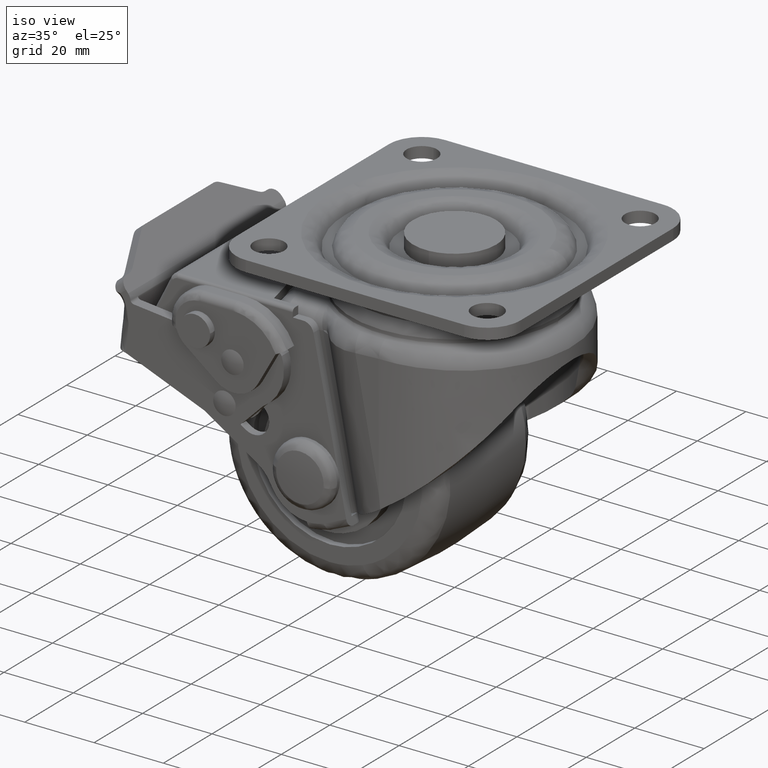
[diagram: clean part render]
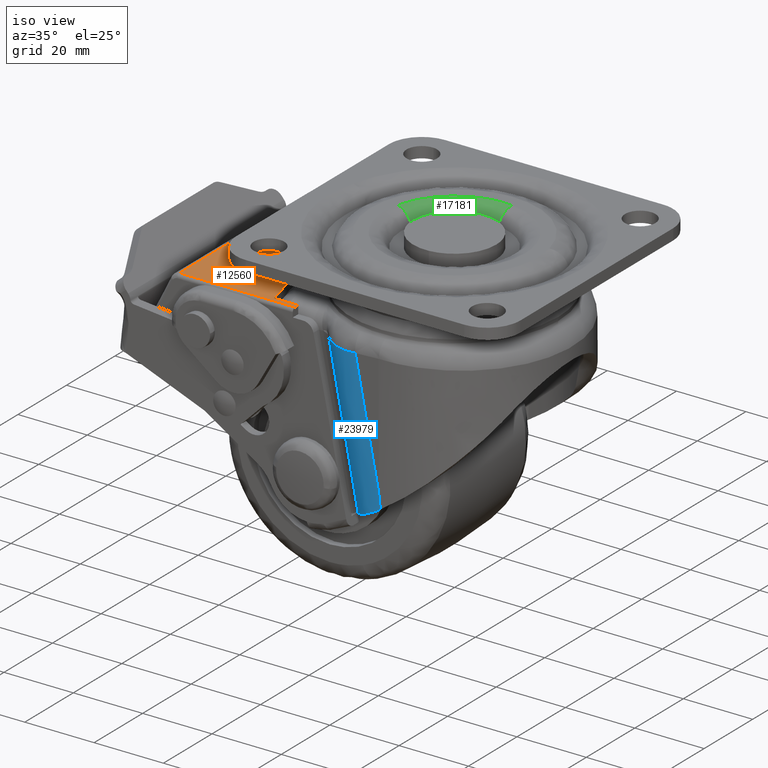
[diagram: same view with three faces highlighted in distinct colors, each labeled with its STEP entity id]
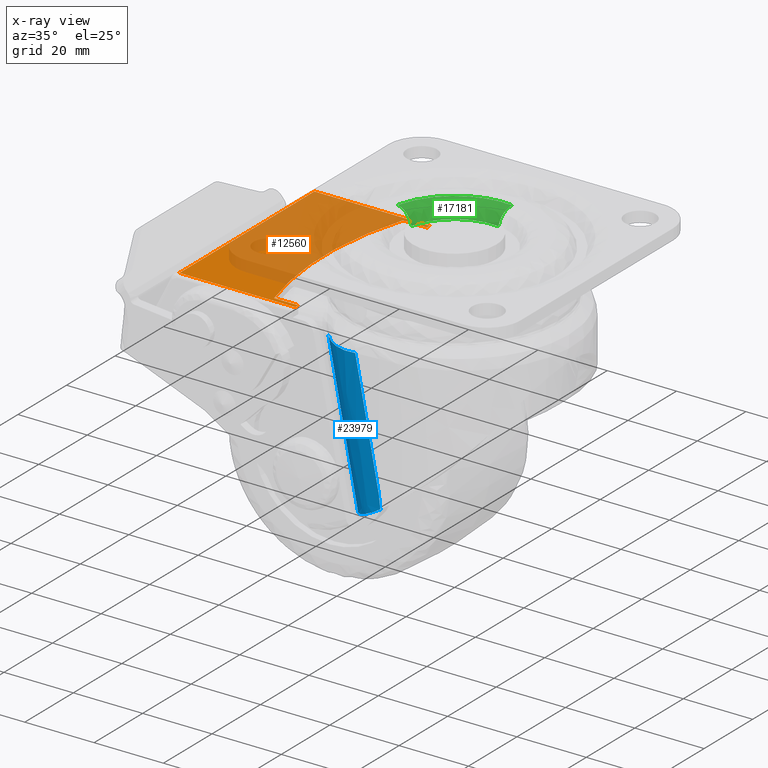
[diagram: x-ray of the same camera — body ghosted, the three highlighted faces saturated]
A machine part, iso view with three faces highlighted in distinct colors.
The next image is the same camera in x-ray (body ghosted, the three faces saturated) — at least one of them is partly hidden behind the body in this view.
Their STEP definitions:

[orange] entity #12560 — the highlighted face is a freeform B-spline surface patch.
#7561=CARTESIAN_POINT('',(-34.523176894351849,-26.500000000000000,-20.0));
#7562=VERTEX_POINT('',#7561);
#7583=CARTESIAN_POINT('',(-34.523176894351998,26.500000000000000,-20.0));
#7584=VERTEX_POINT('',#7583);
#7590=CARTESIAN_POINT('',(-34.523176894351877,-26.499999999999989,-20.0));
#7591=CARTESIAN_POINT('',(-42.660071202908462,-4.257705E-014,-20.0));
#7592=CARTESIAN_POINT('',(-34.523176894352027,26.499999999999989,-20.0));
#7600=(BOUNDED_CURVE()B_SPLINE_CURVE(2,(#7590,#7591,#7592),.UNSPECIFIED.,.F.,.U.)CURVE()GEOMETRIC_REPRESENTATION_ITEM()QUASI_UNIFORM_CURVE()RATIONAL_B_SPLINE_CURVE((1.0,0.955950730570888,1.0))REPRESENTATION_ITEM(''));
#7601=EDGE_CURVE('',#7562,#7584,#7600,.T.);
#9126=CARTESIAN_POINT('',(-60.913524999999900,27.800003000033151,-20.0));
#9127=VERTEX_POINT('',#9126);
#9239=CARTESIAN_POINT('',(-27.546669000000001,27.800003000033151,-20.0));
#9240=VERTEX_POINT('',#9239);
#9241=CARTESIAN_POINT('',(-27.546669000000001,27.800003000033151,-20.0));
#9242=CARTESIAN_POINT('',(-60.913524999999900,27.800003000033151,-20.0));
#9243=QUASI_UNIFORM_CURVE('',1,(#9241,#9242),.UNSPECIFIED.,.F.,.U.);
#9244=EDGE_CURVE('',#9240,#9127,#9243,.T.);
#9281=CARTESIAN_POINT('',(-60.913524999999900,-27.800003000033151,-20.0));
#9282=VERTEX_POINT('',#9281);
#9401=CARTESIAN_POINT('',(-27.546669000000001,-27.800003000033151,-20.0));
#9402=VERTEX_POINT('',#9401);
#9418=CARTESIAN_POINT('',(-60.913524999999900,-27.800003000033151,-20.0));
#9419=CARTESIAN_POINT('',(-27.546669000000001,-27.800003000033151,-20.0));
#9420=QUASI_UNIFORM_CURVE('',1,(#9418,#9419),.UNSPECIFIED.,.F.,.U.);
#9421=EDGE_CURVE('',#9282,#9402,#9420,.T.);
#12162=CARTESIAN_POINT('',(-60.913524999999900,27.800003000033151,-20.0));
#12163=CARTESIAN_POINT('',(-60.913524999999900,-27.800003000033151,-20.0));
#12164=QUASI_UNIFORM_CURVE('',1,(#12162,#12163),.UNSPECIFIED.,.F.,.U.);
#12165=EDGE_CURVE('',#9127,#9282,#12164,.T.);
#12311=CARTESIAN_POINT('',(-27.546669000000001,26.500000000000000,-20.0));
#12312=VERTEX_POINT('',#12311);
#12318=CARTESIAN_POINT('',(-34.523176894351998,26.500000000000000,-20.0));
#12319=CARTESIAN_POINT('',(-27.546669000000001,26.500000000000000,-20.0));
#12320=QUASI_UNIFORM_CURVE('',1,(#12318,#12319),.UNSPECIFIED.,.F.,.U.);
#12321=EDGE_CURVE('',#7584,#12312,#12320,.T.);
#12375=CARTESIAN_POINT('',(-27.546669000000001,-26.500000000000000,-20.0));
#12376=VERTEX_POINT('',#12375);
#12377=CARTESIAN_POINT('',(-27.546669000000001,-26.500000000000000,-20.0));
#12378=CARTESIAN_POINT('',(-34.523176894351849,-26.500000000000000,-20.0));
#12379=QUASI_UNIFORM_CURVE('',1,(#12377,#12378),.UNSPECIFIED.,.F.,.U.);
#12380=EDGE_CURVE('',#12376,#7562,#12379,.T.);
#12537=CARTESIAN_POINT('',(-62.580199079304293,-30.577223191972870,-20.0));
#12538=CARTESIAN_POINT('',(-25.879993727403850,-30.577223191972870,-20.0));
#12539=CARTESIAN_POINT('',(-62.580199079304293,30.577224683281241,-20.0));
#12540=CARTESIAN_POINT('',(-25.879993727403861,30.577224683281241,-20.0));
#12541=B_SPLINE_SURFACE_WITH_KNOTS('',1,1,((#12537,#12539),(#12538,#12540)),.UNSPECIFIED.,.F.,.F.,.U.,(2,2),(2,2),(0.0,36.700205351900443),(0.0,61.154447875254100),.UNSPECIFIED.);
#12542=CARTESIAN_POINT('',(-27.546669000000001,-26.500000000000000,-20.0));
#12543=CARTESIAN_POINT('',(-27.546669000000001,-27.800003000033151,-20.0));
#12544=QUASI_UNIFORM_CURVE('',1,(#12542,#12543),.UNSPECIFIED.,.F.,.U.);
#12545=EDGE_CURVE('',#12376,#9402,#12544,.T.);
#12546=ORIENTED_EDGE('',*,*,#12545,.F.);
#12547=ORIENTED_EDGE('',*,*,#12380,.T.);
#12548=ORIENTED_EDGE('',*,*,#7601,.T.);
#12549=ORIENTED_EDGE('',*,*,#12321,.T.);
#12550=CARTESIAN_POINT('',(-27.546669000000001,27.800003000033151,-20.0));
#12551=CARTESIAN_POINT('',(-27.546669000000001,26.500000000000000,-20.0));
#12552=QUASI_UNIFORM_CURVE('',1,(#12550,#12551),.UNSPECIFIED.,.F.,.U.);
#12553=EDGE_CURVE('',#9240,#12312,#12552,.T.);
#12554=ORIENTED_EDGE('',*,*,#12553,.F.);
#12555=ORIENTED_EDGE('',*,*,#9244,.T.);
#12556=ORIENTED_EDGE('',*,*,#12165,.T.);
#12557=ORIENTED_EDGE('',*,*,#9421,.T.);
#12558=EDGE_LOOP('',(#12546,#12547,#12548,#12549,#12554,#12555,#12556,#12557));
#12559=FACE_OUTER_BOUND('',#12558,.T.);
#12560=ADVANCED_FACE('',(#12559),#12541,.T.);

[blue] entity #23979 — the highlighted face is a freeform B-spline surface patch.
#21446=CARTESIAN_POINT('',(1.126497264450048,-32.873505000000037,-24.244233288142048));
#21447=VERTEX_POINT('',#21446);
#21577=CARTESIAN_POINT('',(-10.181566704598600,-27.578856664413451,-22.422385737217802));
#21578=VERTEX_POINT('',#21577);
#21592=CARTESIAN_POINT('',(1.126497264450048,-32.873505000000037,-24.244233288142048));
#21593=CARTESIAN_POINT('',(0.581582050271924,-32.873505003404723,-24.208636755027911));
#21594=CARTESIAN_POINT('',(0.040992638741814,-32.843353987385761,-24.165556728739489));
#21595=CARTESIAN_POINT('',(-1.032075735999238,-32.724409104968743,-24.068140740897292));
#21596=CARTESIAN_POINT('',(-1.564552076342427,-32.635609449363237,-24.013783834165050));
#21597=CARTESIAN_POINT('',(-2.225127598738224,-32.487576779981900,-23.939838304751230));
#21598=CARTESIAN_POINT('',(-2.357155328877564,-32.456070285151910,-23.924725555476080));
#21599=CARTESIAN_POINT('',(-2.619797594581109,-32.389546428121172,-23.894008621833368));
#21600=CARTESIAN_POINT('',(-2.750362573759980,-32.354547700525202,-23.878411279606340));
#21601=CARTESIAN_POINT('',(-3.139818855637135,-32.244404674980110,-23.830926129971299));
#21602=CARTESIAN_POINT('',(-3.396473551131655,-32.164117447527403,-23.798348120866539));
#21603=CARTESIAN_POINT('',(-4.157649736215914,-31.903039670471131,-23.697927768250949));
#21604=CARTESIAN_POINT('',(-4.653412826914747,-31.702088653677379,-23.627443275829769));
#21605=CARTESIAN_POINT('',(-5.621668659902008,-31.246877970641879,-23.478718900596409));
#21606=CARTESIAN_POINT('',(-6.094298470785080,-30.992534567055330,-23.400461764264001));
#21607=CARTESIAN_POINT('',(-6.784734965363349,-30.570313636334799,-23.275696749358080));
#21608=CARTESIAN_POINT('',(-7.010565694399289,-30.423526983440379,-23.233086836670012));
#21609=CARTESIAN_POINT('',(-7.342850705560326,-30.194369504571810,-23.167376523689249));
#21610=CARTESIAN_POINT('',(-7.452534889267836,-30.116486702849560,-23.145173100745438));
#21611=CARTESIAN_POINT('',(-7.669742535251547,-29.957734060459181,-23.100112940055951));
#21612=CARTESIAN_POINT('',(-7.777342735819516,-29.876803165401618,-23.077239060279741));
#21613=CARTESIAN_POINT('',(-8.308575896319487,-29.465737786945279,-22.961382003173892));
#21614=CARTESIAN_POINT('',(-8.712452684476761,-29.116115339519201,-22.863913942673381));
#21615=CARTESIAN_POINT('',(-9.478508341153241,-28.377103553939339,-22.655108781639001));
#21616=CARTESIAN_POINT('',(-9.840684245347966,-27.987702677915980,-22.543801263010611));
#21617=CARTESIAN_POINT('',(-10.181566704598600,-27.578856664413451,-22.422385737217802));
#21618=B_SPLINE_CURVE_WITH_KNOTS('',3,(#21592,#21593,#21594,#21595,#21596,#21597,#21598,#21599,#21600,#21601,#21602,#21603,#21604,#21605,#21606,#21607,#21608,#21609,#21610,#21611,#21612,#21613,#21614,#21615,#21616,#21617),.UNSPECIFIED.,.F.,.U.,(4,2,2,2,2,2,2,2,2,2,2,2,4),(0.0,0.124999999999999,0.249999999999999,0.281249999999999,0.312499999999999,0.375000000000000,0.500000000000000,0.625000000000000,0.687500000000000,0.718750000000000,0.750000000000000,0.875000000000000,1.0),.UNSPECIFIED.);
#21619=EDGE_CURVE('',#21447,#21578,#21618,.T.);
#23910=CARTESIAN_POINT('',(-10.568239501775340,-27.094732330202866,-21.299640653553126));
#23911=CARTESIAN_POINT('',(-10.568239501775340,-27.094732330202866,-68.483002794560889));
#23912=CARTESIAN_POINT('',(-5.911152706373901,-33.183995244708434,-21.299640653553116));
#23913=CARTESIAN_POINT('',(-5.911152706373901,-33.183995244708434,-68.483002794560889));
#23914=CARTESIAN_POINT('',(1.748015256328438,-32.860380688501017,-21.299640653553130));
#23915=CARTESIAN_POINT('',(1.748015256328438,-32.860380688501017,-68.483002794560889));
#23923=(BOUNDED_SURFACE()B_SPLINE_SURFACE(1,2,((#23910,#23912,#23914),(#23911,#23913,#23915)),.UNSPECIFIED.,.F.,.F.,.U.)B_SPLINE_SURFACE_WITH_KNOTS((2,2),(3,3),(0.0,47.183362141007763),(0.0,14.413586209569880),.UNSPECIFIED.)GEOMETRIC_REPRESENTATION_ITEM()RATIONAL_B_SPLINE_SURFACE(((0.999615048376983,0.885090163534431,0.996152943368221),(0.999615048376983,0.885090163534431,0.996152943368221)))REPRESENTATION_ITEM('')SURFACE());
#23924=CARTESIAN_POINT('',(1.126497264451492,-32.873505000000087,-59.726827333279402));
#23925=VERTEX_POINT('',#23924);
#23926=CARTESIAN_POINT('',(1.126497264450048,-32.873505000000037,-24.244233288142048));
#23927=CARTESIAN_POINT('',(1.126497264451492,-32.873505000000087,-59.726827333279402));
#23928=QUASI_UNIFORM_CURVE('',1,(#23926,#23927),.UNSPECIFIED.,.F.,.U.);
#23929=EDGE_CURVE('',#21447,#23925,#23928,.T.);
#23930=ORIENTED_EDGE('',*,*,#23929,.F.);
#23931=ORIENTED_EDGE('',*,*,#21619,.T.);
#23932=CARTESIAN_POINT('',(-10.181566704599399,-27.578856664414101,-67.332189083804607));
#23933=VERTEX_POINT('',#23932);
#23934=CARTESIAN_POINT('',(-10.181566704598600,-27.578856664413451,-22.422385737217802));
#23935=CARTESIAN_POINT('',(-10.181566704599399,-27.578856664414101,-67.332189083804607));
#23936=QUASI_UNIFORM_CURVE('',1,(#23934,#23935),.UNSPECIFIED.,.F.,.U.);
#23937=EDGE_CURVE('',#21578,#23933,#23936,.T.);
#23938=ORIENTED_EDGE('',*,*,#23937,.T.);
#23939=CARTESIAN_POINT('',(0.816444291282612,-32.870239910576153,-63.750063852508013));
#23940=VERTEX_POINT('',#23939);
#23941=CARTESIAN_POINT('',(-10.181566704599399,-27.578856664414101,-67.332189083804607));
#23942=CARTESIAN_POINT('',(-9.833539175688724,-27.996272298226689,-67.241855003968212));
#23943=CARTESIAN_POINT('',(-9.466708854513094,-28.389399415196241,-67.144533863261771));
#23944=CARTESIAN_POINT('',(-8.697684232995281,-29.129417381536079,-66.935065356346868));
#23945=CARTESIAN_POINT('',(-8.295481752700628,-29.476298749183869,-66.822918244956242));
#23946=CARTESIAN_POINT('',(-7.456659141865710,-30.124509872961610,-66.582516197451938));
#23947=CARTESIAN_POINT('',(-7.020037937268901,-30.425839279081760,-66.454264012932683));
#23948=CARTESIAN_POINT('',(-6.452636094601657,-30.773537179900480,-66.282786722537551));
#23949=CARTESIAN_POINT('',(-6.338012672567629,-30.841651787715421,-66.247912981084866));
#23950=CARTESIAN_POINT('',(-6.107992905615164,-30.974166040128960,-66.177448806651270));
#23951=CARTESIAN_POINT('',(-5.992429017845520,-31.038671321887609,-66.141808069681261));
#23952=CARTESIAN_POINT('',(-5.644111673918870,-31.227013883762979,-66.033647929247522));
#23953=CARTESIAN_POINT('',(-5.409733870480589,-31.345681591722780,-65.959890979777086));
#23954=CARTESIAN_POINT('',(-4.700341191928173,-31.681518862509300,-65.733559788995720));
#23955=CARTESIAN_POINT('',(-4.219085190054520,-31.878574082755179,-65.575931629535020));
#23956=CARTESIAN_POINT('',(-3.240717171764929,-32.220423602628593,-65.246458330329361));
#23957=CARTESIAN_POINT('',(-2.743603778786856,-32.365215523024460,-65.074614520263239));
#23958=CARTESIAN_POINT('',(-2.112443950967320,-32.513400289343082,-64.850326807107805));
#23959=CARTESIAN_POINT('',(-1.985588903833795,-32.541419921376409,-64.804946368960088));
#23960=CARTESIAN_POINT('',(-1.731584895793441,-32.594011669904582,-64.713466531031116));
#23961=CARTESIAN_POINT('',(-1.604523175938388,-32.618570131543173,-64.667399303185320));
#23962=CARTESIAN_POINT('',(-1.223167066137160,-32.687097083491508,-64.528211856377240));
#23963=CARTESIAN_POINT('',(-0.968702052644360,-32.725920648237718,-64.434105990506012));
#23964=CARTESIAN_POINT('',(-0.204677427050049,-32.822187018410602,-64.147810866781867));
#23965=CARTESIAN_POINT('',(0.305507049316624,-32.859477612201417,-63.951646163068943));
#23966=CARTESIAN_POINT('',(0.816444291282607,-32.870239910576181,-63.750063852508013));
#23967=B_SPLINE_CURVE_WITH_KNOTS('',3,(#23941,#23942,#23943,#23944,#23945,#23946,#23947,#23948,#23949,#23950,#23951,#23952,#23953,#23954,#23955,#23956,#23957,#23958,#23959,#23960,#23961,#23962,#23963,#23964,#23965,#23966),.UNSPECIFIED.,.F.,.U.,(4,2,2,2,2,2,2,2,2,2,2,2,4),(0.0,0.125000000000000,0.250000000000001,0.375000000000001,0.406250000000001,0.437500000000001,0.500000000000001,0.625000000000000,0.750000000000000,0.781250000000000,0.812500000000000,0.875000000000000,1.0),.UNSPECIFIED.);
#23968=EDGE_CURVE('',#23933,#23940,#23967,.T.);
#23969=ORIENTED_EDGE('',*,*,#23968,.T.);
#23970=CARTESIAN_POINT('',(1.126497264451492,-32.873505000000087,-59.726827333279402));
#23971=CARTESIAN_POINT('',(1.023144311785857,-32.873505000000037,-61.067906403002432));
#23972=CARTESIAN_POINT('',(0.919791323781616,-32.872416795540801,-62.408986574256538));
#23973=CARTESIAN_POINT('',(0.816444291282518,-32.870239910576181,-63.750063852508013));
#23974=QUASI_UNIFORM_CURVE('',3,(#23970,#23971,#23972,#23973),.UNSPECIFIED.,.F.,.U.);
#23975=EDGE_CURVE('',#23925,#23940,#23974,.T.);
#23976=ORIENTED_EDGE('',*,*,#23975,.F.);
#23977=EDGE_LOOP('',(#23930,#23931,#23938,#23969,#23976));
#23978=FACE_OUTER_BOUND('',#23977,.T.);
#23979=ADVANCED_FACE('',(#23978),#23923,.T.);

[green] entity #17181 — the highlighted face is a freeform B-spline surface patch.
#17005=CARTESIAN_POINT('',(1.902291704681454,15.382824391931811,-3.799999999646191));
#17006=VERTEX_POINT('',#17005);
#17037=CARTESIAN_POINT('',(-15.060291860269709,3.665734453920060,-3.799999999587394));
#17038=VERTEX_POINT('',#17037);
#17052=CARTESIAN_POINT('',(-19.776460575643839,4.813668525486800,-8.684730E-016));
#17053=VERTEX_POINT('',#17052);
#17054=CARTESIAN_POINT('',(-15.060291860269716,3.665734453920061,-3.799999999587394));
#17055=CARTESIAN_POINT('',(-15.973098708730738,3.887915241964941,-2.334232E-009));
#17056=CARTESIAN_POINT('',(-19.776460575643842,4.813668525486800,-8.684730E-016));
#17064=(BOUNDED_CURVE()B_SPLINE_CURVE(2,(#17054,#17055,#17056),.UNSPECIFIED.,.F.,.U.)B_SPLINE_CURVE_WITH_KNOTS((3,3),(-1.696878933474306,-0.313178853134000),.UNSPECIFIED.)CURVE()GEOMETRIC_REPRESENTATION_ITEM()RATIONAL_B_SPLINE_CURVE((0.897623513774809,0.705698074410635,0.894853527452785))REPRESENTATION_ITEM(''));
#17065=EDGE_CURVE('',#17038,#17053,#17064,.T.);
#17099=CARTESIAN_POINT('',(2.497999192603200,20.199994989274650,-8.427745E-016));
#17100=VERTEX_POINT('',#17099);
#17114=CARTESIAN_POINT('',(1.902291704681454,15.382824391931807,-3.799999999646191));
#17115=CARTESIAN_POINT('',(2.017589928025812,16.315179991470483,-3.883928E-009));
#17116=CARTESIAN_POINT('',(2.497999192603201,20.199994989274657,-8.427745E-016));
#17124=(BOUNDED_CURVE()B_SPLINE_CURVE(2,(#17114,#17115,#17116),.UNSPECIFIED.,.F.,.U.)B_SPLINE_CURVE_WITH_KNOTS((3,3),(-1.696878933501539,-0.313178853577639),.UNSPECIFIED.)CURVE()GEOMETRIC_REPRESENTATION_ITEM()RATIONAL_B_SPLINE_CURVE((0.858923479699866,0.675272691092736,0.856272918117451))REPRESENTATION_ITEM(''));
#17125=EDGE_CURVE('',#17006,#17100,#17124,.T.);
#17130=CARTESIAN_POINT('',(-14.998143017347186,3.650607180336383,-4.097243330222404));
#17131=CARTESIAN_POINT('',(-11.747307620278390,17.006329065099628,-4.097243330222407));
#17132=CARTESIAN_POINT('',(1.894441576025290,15.319344563947588,-4.097243330222406));
#17133=CARTESIAN_POINT('',(-15.775460771330964,3.839809388290658,0.260879937797308));
#17134=CARTESIAN_POINT('',(-12.356142378300740,17.887726281881889,0.260879937797308));
#17135=CARTESIAN_POINT('',(1.992625935864120,16.113309423142372,0.260879937797308));
#17136=CARTESIAN_POINT('',(-20.072694692128238,4.885773077842297,-0.009304028227191));
#17137=CARTESIAN_POINT('',(-15.721954314185961,22.760341114415539,-0.009304028227191));
#17138=CARTESIAN_POINT('',(2.535417039539332,20.502573282570538,-0.009304028227191));
#17146=(BOUNDED_SURFACE()B_SPLINE_SURFACE(2,2,((#17130,#17133,#17136),(#17131,#17134,#17137),(#17132,#17135,#17138)),.UNSPECIFIED.,.F.,.F.,.U.)B_SPLINE_SURFACE_WITH_KNOTS((3,3),(3,3),(0.0,31.455710531261040),(0.0,7.586697821894467),.UNSPECIFIED.)GEOMETRIC_REPRESENTATION_ITEM()RATIONAL_B_SPLINE_SURFACE(((0.917747657054809,0.685712272294433,0.914700987890107),(0.670449756948184,0.500939035651206,0.668224048622727),(0.878179993037749,0.656148554431517,0.875264677607326)))REPRESENTATION_ITEM('')SURFACE());
#17147=CARTESIAN_POINT('',(1.902291704681455,15.382824391931814,-3.799999999646192));
#17148=CARTESIAN_POINT('',(0.954754689812845,15.500000000000000,-3.800000000000134));
#17149=CARTESIAN_POINT('',(0.0,15.500000000000000,-3.800000000000135));
#17150=CARTESIAN_POINT('',(-12.179784938257024,15.499999999999998,-3.800000000000134));
#17151=CARTESIAN_POINT('',(-15.060291860269713,3.665734453920061,-3.799999999587394));
#17159=(BOUNDED_CURVE()B_SPLINE_CURVE(2,(#17147,#17148,#17149,#17150,#17151),.UNSPECIFIED.,.F.,.U.)B_SPLINE_CURVE_WITH_KNOTS((3,2,3),(0.728763968095999,0.750000000000000,0.959598322306642),.UNSPECIFIED.)CURVE()GEOMETRIC_REPRESENTATION_ITEM()RATIONAL_B_SPLINE_CURVE((0.954467626948600,0.975120441043248,1.0,0.754440290886833,0.920631806223480))REPRESENTATION_ITEM(''));
#17160=EDGE_CURVE('',#17006,#17038,#17159,.T.);
#17161=ORIENTED_EDGE('',*,*,#17160,.F.);
#17162=ORIENTED_EDGE('',*,*,#17125,.T.);
#17163=CARTESIAN_POINT('',(-19.776460575643839,4.813668525486800,-8.684730E-016));
#17164=CARTESIAN_POINT('',(-15.993915582792162,20.353864439804653,0.0));
#17165=CARTESIAN_POINT('',(0.0,20.353864439804649,0.0));
#17166=CARTESIAN_POINT('',(1.253738550841820,20.353864439804656,0.0));
#17167=CARTESIAN_POINT('',(2.497999192603201,20.199994989274657,-8.427745E-016));
#17175=(BOUNDED_CURVE()B_SPLINE_CURVE(2,(#17163,#17164,#17165,#17166,#17167),.UNSPECIFIED.,.F.,.U.)B_SPLINE_CURVE_WITH_KNOTS((3,2,3),(0.040401677697172,0.250000000000000,0.271236031912877),.UNSPECIFIED.)CURVE()GEOMETRIC_REPRESENTATION_ITEM()RATIONAL_B_SPLINE_CURVE((0.920631806217432,0.754440290891301,1.0,0.975120441032849,0.954467626931335))REPRESENTATION_ITEM(''));
#17176=EDGE_CURVE('',#17053,#17100,#17175,.T.);
#17177=ORIENTED_EDGE('',*,*,#17176,.F.);
#17178=ORIENTED_EDGE('',*,*,#17065,.F.);
#17179=EDGE_LOOP('',(#17161,#17162,#17177,#17178));
#17180=FACE_OUTER_BOUND('',#17179,.T.);
#17181=ADVANCED_FACE('',(#17180),#17146,.T.);